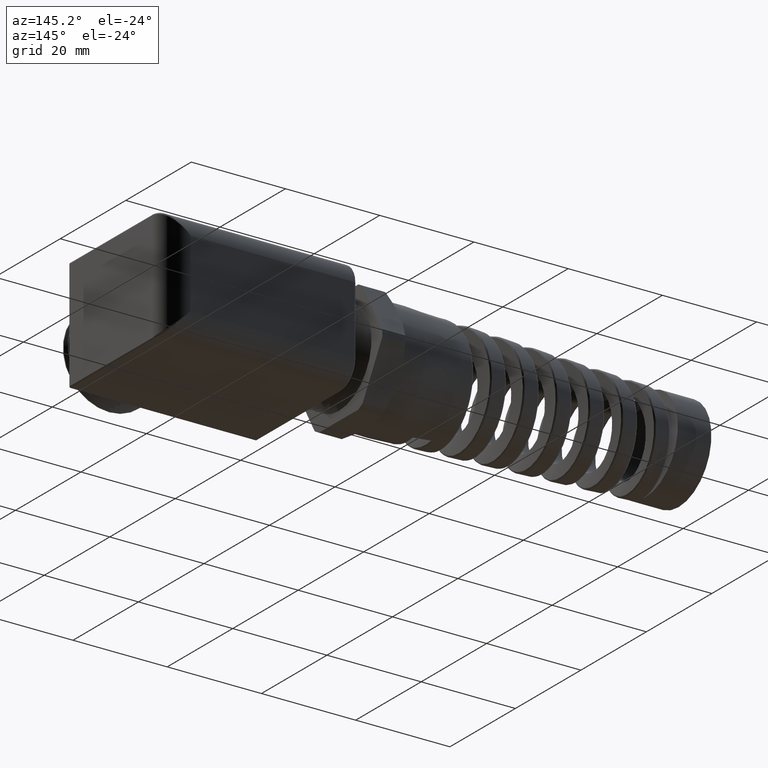
[diagram: clean part render]
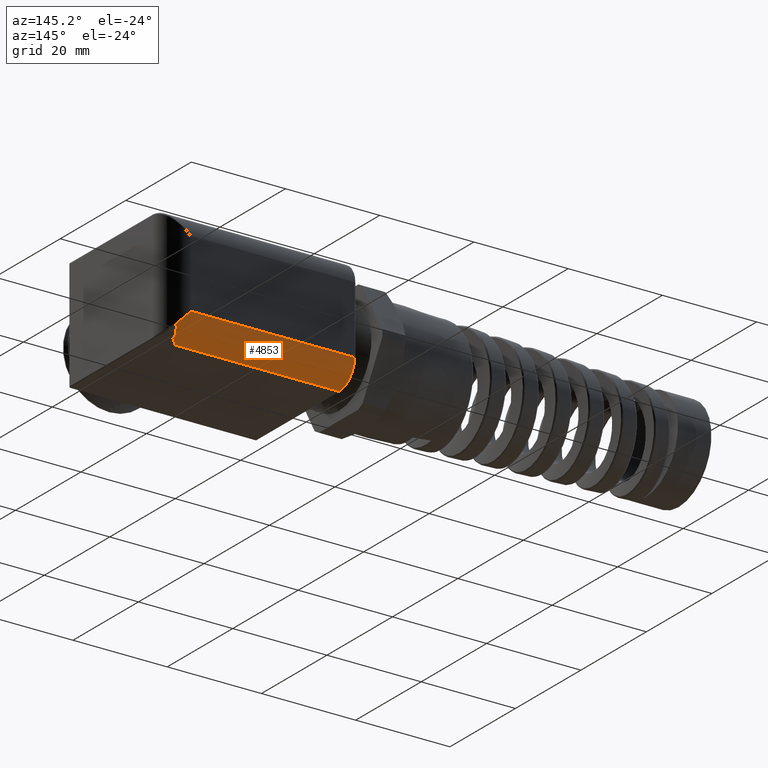
[diagram: same view with one face highlighted and labeled with its STEP entity id]
A machine part, auxiliary view. The second image highlights one B-rep face of the part: STEP entity #4853.
In plain terms, the highlighted cylindrical surface (edge-blend (fillet) strip) has radius 4.7413 mm, axis along (1, 0, 0).
Its self-contained STEP definition (entity closure, byte-faithful):
#4227 = EDGE_CURVE ( 'NONE', #4258, #4228, #9248, .T. ) ;
#4228 = VERTEX_POINT ( 'NONE', #9247 ) ;
#4257 = VERTEX_POINT ( 'NONE', #9281 ) ;
#4258 = VERTEX_POINT ( 'NONE', #9280 ) ;
#4268 = EDGE_CURVE ( 'NONE', #4257, #4258, #9399, .T. ) ;
#4373 = EDGE_CURVE ( 'NONE', #4375, #4257, #9817, .T. ) ;
#4375 = VERTEX_POINT ( 'NONE', #9813 ) ;
#4720 = ORIENTED_EDGE ( 'NONE', *, *, #4721, .T. ) ;
#4721 = EDGE_CURVE ( 'NONE', #4375, #4830, #10587, .T. ) ;
#4722 = ORIENTED_EDGE ( 'NONE', *, *, #4828, .F. ) ;
#4723 = ORIENTED_EDGE ( 'NONE', *, *, #4724, .T. ) ;
#4724 = EDGE_CURVE ( 'NONE', #4829, #4228, #10576, .T. ) ;
#4735 = EDGE_LOOP ( 'NONE', ( #4736, #4737, #4738, #4720, #4722, #4723 ) ) ;
#4736 = ORIENTED_EDGE ( 'NONE', *, *, #4227, .F. ) ;
#4737 = ORIENTED_EDGE ( 'NONE', *, *, #4268, .F. ) ;
#4738 = ORIENTED_EDGE ( 'NONE', *, *, #4373, .F. ) ;
#4828 = EDGE_CURVE ( 'NONE', #4829, #4830, #10820, .T. ) ;
#4829 = VERTEX_POINT ( 'NONE', #10816 ) ;
#4830 = VERTEX_POINT ( 'NONE', #10815 ) ;
#4853 = ADVANCED_FACE ( 'NONE', ( #10639 ), #10632, .T. ) ;
#9228 = CARTESIAN_POINT ( 'NONE',  ( 1.482052933150984000, 0.5655528969226058000, -0.3913779949559043100 ) ) ;
#9229 = CARTESIAN_POINT ( 'NONE',  ( 1.476798773933163600, 0.5605351978809455200, -0.3984472193569392200 ) ) ;
#9230 = CARTESIAN_POINT ( 'NONE',  ( 1.471780555558443600, 0.5548575372770717700, -0.4053945200329743300 ) ) ;
#9231 = CARTESIAN_POINT ( 'NONE',  ( 1.462650212761886600, 0.5422519431825152400, -0.4186404862669010900 ) ) ;
#9232 = CARTESIAN_POINT ( 'NONE',  ( 1.458562060098433500, 0.5353785334640034400, -0.4248980039687593700 ) ) ;
#9233 = CARTESIAN_POINT ( 'NONE',  ( 1.451580675823566100, 0.5202991845326050400, -0.4366105120791180500 ) ) ;
#9234 = CARTESIAN_POINT ( 'NONE',  ( 1.448668507228769300, 0.5119813111875255500, -0.4421179369693921100 ) ) ;
#9244 = CARTESIAN_POINT ( 'NONE',  ( 1.444678741054051400, 0.4944951419384837600, -0.4517279137405499400 ) ) ;
#9245 = CARTESIAN_POINT ( 'NONE',  ( 1.443555555555554800, 0.4852912345909170500, -0.4558822720959717100 ) ) ;
#9246 = CARTESIAN_POINT ( 'NONE',  ( 1.443555555555555500, 0.4755555555555555100, -0.4593243544286519900 ) ) ;
#9247 = CARTESIAN_POINT ( 'NONE',  ( 1.482052933150984000, 0.5655528969226058000, -0.3913779949559043100 ) ) ;
#9248 = B_SPLINE_CURVE_WITH_KNOTS ( 'NONE', 3,
 ( #9246, #9245, #9244, #9234, #9233, #9232, #9231, #9230, #9229, #9228 ),
 .UNSPECIFIED., .F., .F.,
 ( 4, 2, 2, 2, 4 ),
 ( 1.734723475976807100E-018, 0.0007733731003673380800, 0.001546746200734674400, 0.002320119301102010800, 0.003093492401469347100 ),
 .UNSPECIFIED. ) ;
#9280 = CARTESIAN_POINT ( 'NONE',  ( 1.443555555555555500, 0.4755555555555555100, -0.4593243544286519900 ) ) ;
#9281 = CARTESIAN_POINT ( 'NONE',  ( 1.381333333333332600, 0.4133333333333332200, -0.4700000000000000300 ) ) ;
#9390 = CARTESIAN_POINT ( 'NONE',  ( 1.443555555555555500, 0.4755555555555555100, -0.4593243544286519900 ) ) ;
#9391 = CARTESIAN_POINT ( 'NONE',  ( 1.423522936573932600, 0.4555229365739327200, -0.4664069547920677800 ) ) ;
#9396 = CARTESIAN_POINT ( 'NONE',  ( 1.402581134423580300, 0.4345811344235808200, -0.4700000000000000300 ) ) ;
#9397 = CARTESIAN_POINT ( 'NONE',  ( 1.381333333333332600, 0.4133333333333332200, -0.4700000000000000300 ) ) ;
#9399 =( BOUNDED_CURVE ( )  B_SPLINE_CURVE ( 3, ( #9397, #9396, #9391, #9390 ),
 .UNSPECIFIED., .F., .T. ) 
 B_SPLINE_CURVE_WITH_KNOTS ( ( 4, 4 ),
 ( 4.712388980384689700, 5.052225889838811500 ),
 .UNSPECIFIED. ) 
 CURVE ( )  GEOMETRIC_REPRESENTATION_ITEM ( )  RATIONAL_B_SPLINE_CURVE ( ( 1.000000000000000000, 0.9903990397689925700, 0.9903990397689925700, 1.000000000000000000 ) ) 
 REPRESENTATION_ITEM ( '' )  );
#9813 = CARTESIAN_POINT ( 'NONE',  ( 0.01265536723163842100, 0.4133333333333332200, -0.4700000000000000300 ) ) ;
#9814 = DIRECTION ( 'NONE',  ( 1.000000000000000000, 0.0000000000000000000, 0.0000000000000000000 ) ) ;
#9815 = VECTOR ( 'NONE', #9814, 39.37007874015748100 ) ;
#9816 = CARTESIAN_POINT ( 'NONE',  ( 1.232614984114216400, 0.4133333333333332200, -0.4700000000000000300 ) ) ;
#9817 = LINE ( 'NONE', #9816, #9815 ) ;
#10490 = CARTESIAN_POINT ( 'NONE',  ( 1.482052933150984000, 0.5655528969226058000, -0.3913779949559043100 ) ) ;
#10491 = CARTESIAN_POINT ( 'NONE',  ( 1.452382869104805700, 0.5881441669779279300, -0.3595501080700039800 ) ) ;
#10492 = CARTESIAN_POINT ( 'NONE',  ( 1.417717696976830800, 0.5999999999999997600, -0.3223638325145398700 ) ) ;
#10493 = CARTESIAN_POINT ( 'NONE',  ( 1.381333333333333300, 0.5999999999999999800, -0.2833333333333333800 ) ) ;
#10576 =( BOUNDED_CURVE ( )  B_SPLINE_CURVE ( 3, ( #10493, #10492, #10491, #10490 ),
 .UNSPECIFIED., .F., .T. ) 
 B_SPLINE_CURVE_WITH_KNOTS ( ( 4, 4 ),
 ( 4.712388980384689700, 5.329658462089861700 ),
 .UNSPECIFIED. ) 
 CURVE ( )  GEOMETRIC_REPRESENTATION_ITEM ( )  RATIONAL_B_SPLINE_CURVE ( ( 1.000000000000000000, 0.9684994442050702800, 0.9684994442050702800, 1.000000000000000000 ) ) 
 REPRESENTATION_ITEM ( '' )  );
#10579 = DIRECTION ( 'NONE',  ( 0.0000000000000000000, 0.0000000000000000000, -1.000000000000000000 ) ) ;
#10580 = DIRECTION ( 'NONE',  ( 1.000000000000000000, 0.0000000000000000000, 0.0000000000000000000 ) ) ;
#10581 = CARTESIAN_POINT ( 'NONE',  ( 0.01265536723163842100, 0.4133333333333332200, -0.2833333333333333800 ) ) ;
#10582 = AXIS2_PLACEMENT_3D ( 'NONE', #10581, #10580, #10579 ) ;
#10587 = CIRCLE ( 'NONE', #10582, 0.1866666666666666800 ) ;
#10632 = CYLINDRICAL_SURFACE ( 'NONE', #10633, 0.1866666666666666800 ) ;
#10633 = AXIS2_PLACEMENT_3D ( 'NONE', #10770, #10769, #10768 ) ;
#10639 = FACE_OUTER_BOUND ( 'NONE', #4735, .T. ) ;
#10768 = DIRECTION ( 'NONE',  ( 0.0000000000000000000, 0.0000000000000000000, -1.000000000000000000 ) ) ;
#10769 = DIRECTION ( 'NONE',  ( 1.000000000000000000, 0.0000000000000000000, 0.0000000000000000000 ) ) ;
#10770 = CARTESIAN_POINT ( 'NONE',  ( 1.232614984114216400, 0.4133333333333332200, -0.2833333333333333800 ) ) ;
#10815 = CARTESIAN_POINT ( 'NONE',  ( 0.01265536723163842100, 0.5999999999999999800, -0.2833333333333334900 ) ) ;
#10816 = CARTESIAN_POINT ( 'NONE',  ( 1.381333333333333300, 0.5999999999999999800, -0.2833333333333333800 ) ) ;
#10817 = DIRECTION ( 'NONE',  ( -1.000000000000000000, 0.0000000000000000000, 0.0000000000000000000 ) ) ;
#10818 = VECTOR ( 'NONE', #10817, 39.37007874015748100 ) ;
#10819 = CARTESIAN_POINT ( 'NONE',  ( 0.0000000000000000000, 0.5999999999999999800, -0.2833333333333334900 ) ) ;
#10820 = LINE ( 'NONE', #10819, #10818 ) ;